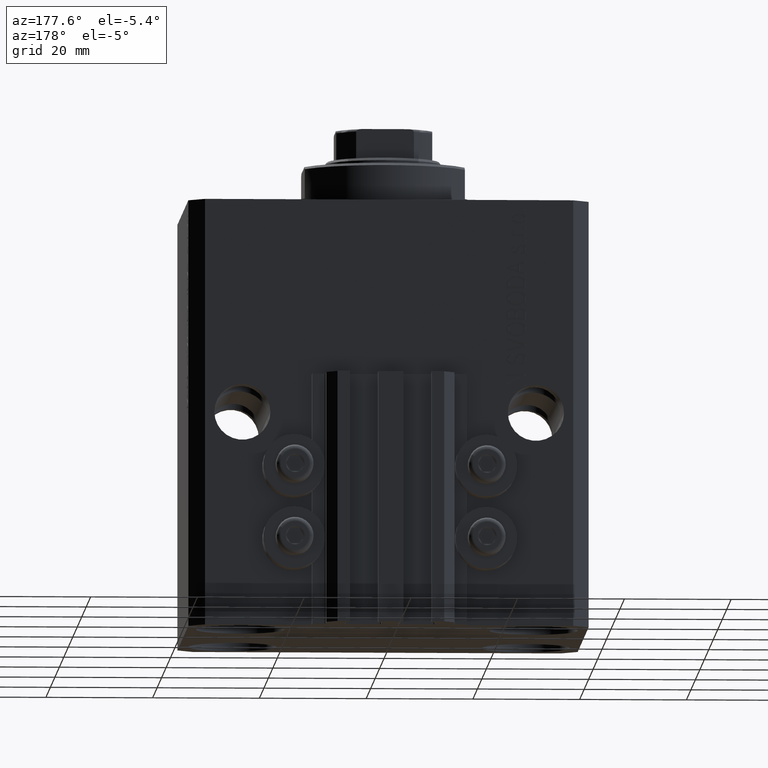
[diagram: clean part render]
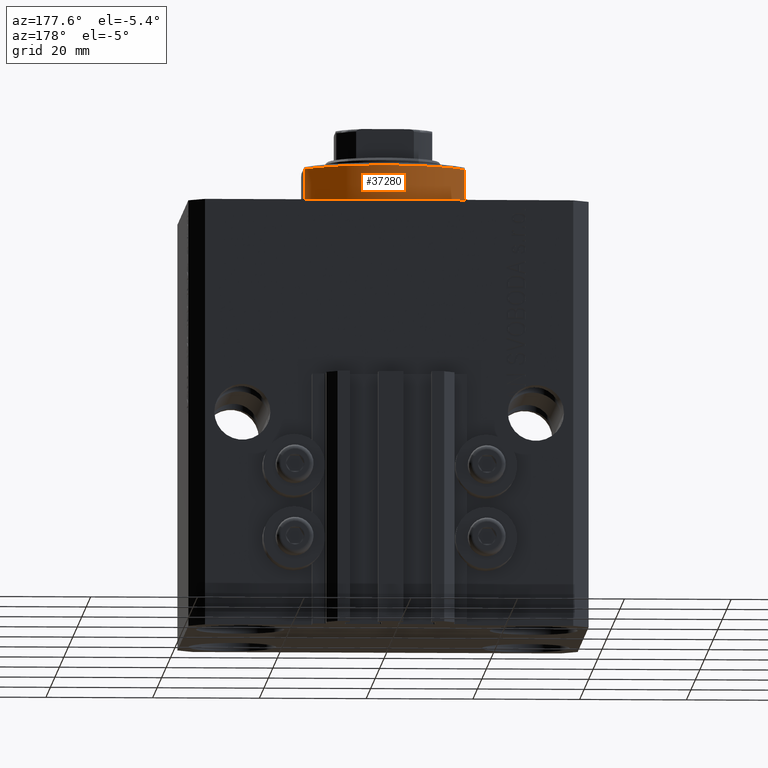
[diagram: same view with one face highlighted and labeled with its STEP entity id]
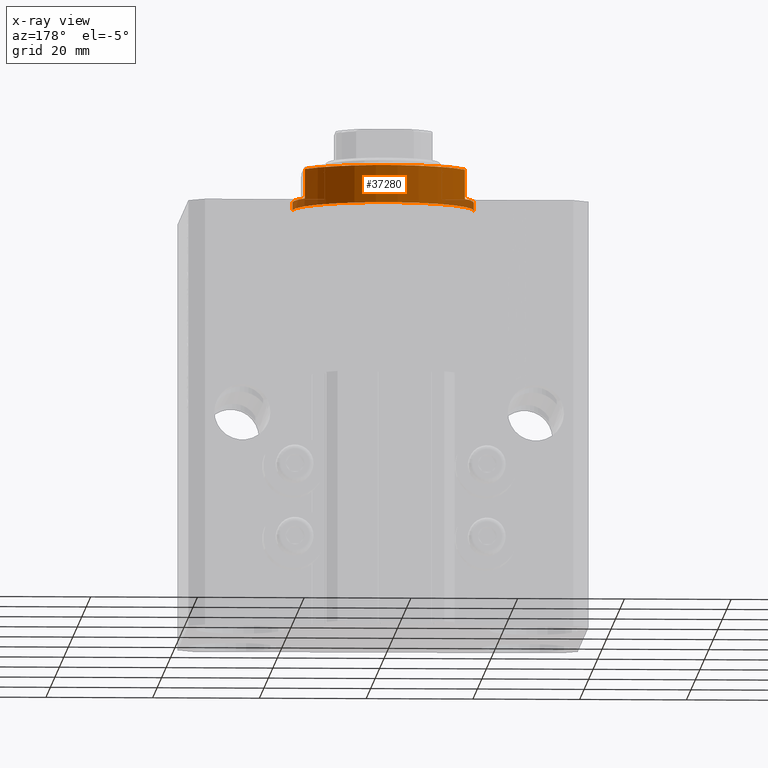
[diagram: x-ray of the same camera — body ghosted, the highlighted face saturated]
A machine part, auxiliary view. The second image highlights one B-rep face of the part: STEP entity #37280.
The next image is the same camera in x-ray: the body ghosted, the highlighted face saturated — about 7% of this face is hidden behind the body in this view.
In plain terms, the highlighted cylindrical surface (partial cylindrical patch) has radius 17 mm, axis along (0, 0, -1).
Its self-contained STEP definition (entity closure, byte-faithful):
#1493 = VECTOR ( 'NONE', #5062, 1000.000000000000000 ) ;
#1634 = VERTEX_POINT ( 'NONE', #32914 ) ;
#2013 = AXIS2_PLACEMENT_3D ( 'NONE', #46491, #10028, #32735 ) ;
#2172 = AXIS2_PLACEMENT_3D ( 'NONE', #28180, #13260, #42379 ) ;
#2491 = ORIENTED_EDGE ( 'NONE', *, *, #43815, .T. ) ;
#3719 = AXIS2_PLACEMENT_3D ( 'NONE', #40618, #30194, #37286 ) ;
#5062 = DIRECTION ( 'NONE',  ( -0.000000000000000000, -0.000000000000000000, 1.000000000000000000 ) ) ;
#5496 = ORIENTED_EDGE ( 'NONE', *, *, #46554, .T. ) ;
#6133 = CARTESIAN_POINT ( 'NONE',  ( 0.000000000000000000, 0.000000000000000000, -7.500000000000007105 ) ) ;
#7678 = CARTESIAN_POINT ( 'NONE',  ( 17.00000000000000000, 0.000000000000000000, -2.000000000000000000 ) ) ;
#8855 = LINE ( 'NONE', #38178, #1493 ) ;
#9486 = FACE_OUTER_BOUND ( 'NONE', #46408, .T. ) ;
#9880 = CIRCLE ( 'NONE', #10676, 17.00000000000000000 ) ;
#10028 = DIRECTION ( 'NONE',  ( 0.000000000000000000, 0.000000000000000000, -1.000000000000000000 ) ) ;
#10311 = CIRCLE ( 'NONE', #2013, 17.00000000000000000 ) ;
#10321 = ORIENTED_EDGE ( 'NONE', *, *, #31608, .F. ) ;
#10676 = AXIS2_PLACEMENT_3D ( 'NONE', #36082, #15415, #26327 ) ;
#11286 = LINE ( 'NONE', #44187, #45024 ) ;
#11436 = CARTESIAN_POINT ( 'NONE',  ( -17.00000000000000000, 2.081899558550500280E-15, -0.5000000000000004441 ) ) ;
#11741 = ORIENTED_EDGE ( 'NONE', *, *, #33103, .T. ) ;
#12538 = EDGE_CURVE ( 'NONE', #18351, #1634, #38769, .T. ) ;
#13260 = DIRECTION ( 'NONE',  ( -0.000000000000000000, -0.000000000000000000, 1.000000000000000000 ) ) ;
#15064 = CIRCLE ( 'NONE', #3719, 17.00000000000000000 ) ;
#15415 = DIRECTION ( 'NONE',  ( -0.000000000000000000, -0.000000000000000000, -1.000000000000000000 ) ) ;
#16111 = DIRECTION ( 'NONE',  ( -1.000000000000000000, 0.000000000000000000, 0.000000000000000000 ) ) ;
#16549 = DIRECTION ( 'NONE',  ( -0.000000000000000000, -0.000000000000000000, 1.000000000000000000 ) ) ;
#17017 = LINE ( 'NONE', #41661, #32392 ) ;
#18351 = VERTEX_POINT ( 'NONE', #7678 ) ;
#23947 = CYLINDRICAL_SURFACE ( 'NONE', #2172, 17.00000000000000000 ) ;
#24131 = CARTESIAN_POINT ( 'NONE',  ( 17.00000000000000000, 0.000000000000000000, -8.000000000000000000 ) ) ;
#24378 = CARTESIAN_POINT ( 'NONE',  ( -17.00000000000000000, 2.081899558550500280E-15, -2.000000000000000000 ) ) ;
#25454 = ORIENTED_EDGE ( 'NONE', *, *, #26737, .F. ) ;
#26327 = DIRECTION ( 'NONE',  ( 1.000000000000000000, 0.000000000000000000, 0.000000000000000000 ) ) ;
#26737 = EDGE_CURVE ( 'NONE', #31541, #31718, #11286, .T. ) ;
#27282 = VERTEX_POINT ( 'NONE', #24378 ) ;
#27454 = DIRECTION ( 'NONE',  ( -0.000000000000000000, -0.000000000000000000, 1.000000000000000000 ) ) ;
#27560 = CARTESIAN_POINT ( 'NONE',  ( 15.00000000000000000, 8.000000000000001776, -7.500000000000007105 ) ) ;
#27688 = DIRECTION ( 'NONE',  ( 0.000000000000000000, 0.000000000000000000, 1.000000000000000000 ) ) ;
#28180 = CARTESIAN_POINT ( 'NONE',  ( 0.000000000000000000, 0.000000000000000000, -8.000000000000000000 ) ) ;
#28346 = VERTEX_POINT ( 'NONE', #11436 ) ;
#30194 = DIRECTION ( 'NONE',  ( 0.000000000000000000, 0.000000000000000000, -1.000000000000000000 ) ) ;
#30747 = CIRCLE ( 'NONE', #40584, 17.00000000000000000 ) ;
#31541 = VERTEX_POINT ( 'NONE', #27560 ) ;
#31608 = EDGE_CURVE ( 'NONE', #31718, #18351, #10311, .T. ) ;
#31718 = VERTEX_POINT ( 'NONE', #33432 ) ;
#32392 = VECTOR ( 'NONE', #27454, 1000.000000000000000 ) ;
#32735 = DIRECTION ( 'NONE',  ( -1.000000000000000000, 0.000000000000000000, 0.000000000000000000 ) ) ;
#32784 = VERTEX_POINT ( 'NONE', #34604 ) ;
#32914 = CARTESIAN_POINT ( 'NONE',  ( 17.00000000000000000, 0.000000000000000000, -0.5000000000000004441 ) ) ;
#33103 = EDGE_CURVE ( 'NONE', #31541, #43821, #30747, .T. ) ;
#33432 = CARTESIAN_POINT ( 'NONE',  ( 14.99999999999999645, 8.000000000000003553, -2.000000000000000000 ) ) ;
#33939 = CARTESIAN_POINT ( 'NONE',  ( -15.00000000000000000, 8.000000000000001776, -7.500000000000007105 ) ) ;
#34604 = CARTESIAN_POINT ( 'NONE',  ( -14.99999999999999645, 8.000000000000003553, -2.000000000000000000 ) ) ;
#35604 = ORIENTED_EDGE ( 'NONE', *, *, #41775, .T. ) ;
#36082 = CARTESIAN_POINT ( 'NONE',  ( 0.000000000000000000, 0.000000000000000000, -0.5000000000000004441 ) ) ;
#36363 = DIRECTION ( 'NONE',  ( -0.000000000000000000, -0.000000000000000000, 1.000000000000000000 ) ) ;
#36831 = ORIENTED_EDGE ( 'NONE', *, *, #43018, .F. ) ;
#37280 = ADVANCED_FACE ( 'NONE', ( #9486 ), #23947, .T. ) ;
#37286 = DIRECTION ( 'NONE',  ( -1.000000000000000000, 0.000000000000000000, 0.000000000000000000 ) ) ;
#38178 = CARTESIAN_POINT ( 'NONE',  ( -15.00000000000000000, 8.000000000000001776, -8.000000000000000000 ) ) ;
#38769 = LINE ( 'NONE', #24131, #40380 ) ;
#40380 = VECTOR ( 'NONE', #16549, 1000.000000000000000 ) ;
#40584 = AXIS2_PLACEMENT_3D ( 'NONE', #6133, #27688, #16111 ) ;
#40618 = CARTESIAN_POINT ( 'NONE',  ( 0.000000000000000000, 0.000000000000000000, -2.000000000000000000 ) ) ;
#41661 = CARTESIAN_POINT ( 'NONE',  ( -17.00000000000000000, 2.081899558550500280E-15, -8.000000000000000000 ) ) ;
#41775 = EDGE_CURVE ( 'NONE', #27282, #28346, #17017, .T. ) ;
#42379 = DIRECTION ( 'NONE',  ( 1.000000000000000000, 0.000000000000000000, 0.000000000000000000 ) ) ;
#43018 = EDGE_CURVE ( 'NONE', #27282, #32784, #15064, .T. ) ;
#43815 = EDGE_CURVE ( 'NONE', #43821, #32784, #8855, .T. ) ;
#43821 = VERTEX_POINT ( 'NONE', #33939 ) ;
#44100 = ORIENTED_EDGE ( 'NONE', *, *, #12538, .F. ) ;
#44187 = CARTESIAN_POINT ( 'NONE',  ( 15.00000000000000000, 8.000000000000001776, -8.000000000000000000 ) ) ;
#45024 = VECTOR ( 'NONE', #36363, 1000.000000000000000 ) ;
#46408 = EDGE_LOOP ( 'NONE', ( #36831, #35604, #5496, #44100, #10321, #25454, #11741, #2491 ) ) ;
#46491 = CARTESIAN_POINT ( 'NONE',  ( 0.000000000000000000, 0.000000000000000000, -2.000000000000000000 ) ) ;
#46554 = EDGE_CURVE ( 'NONE', #28346, #1634, #9880, .T. ) ;